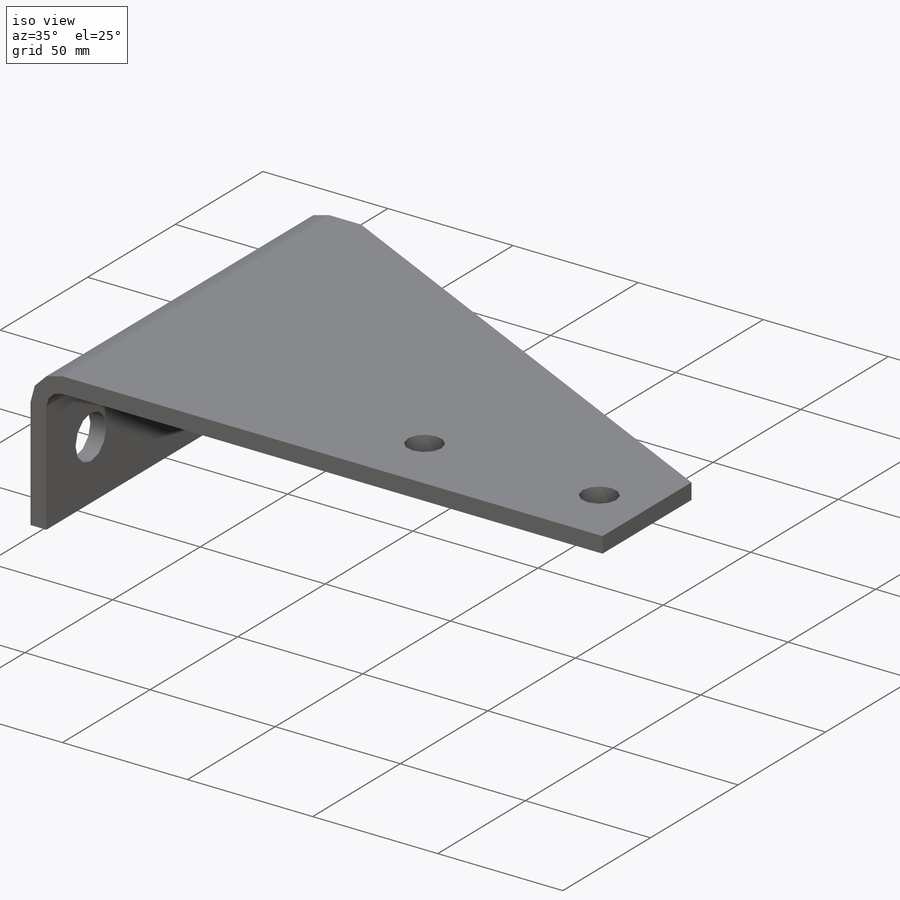
[diagram: iso view]
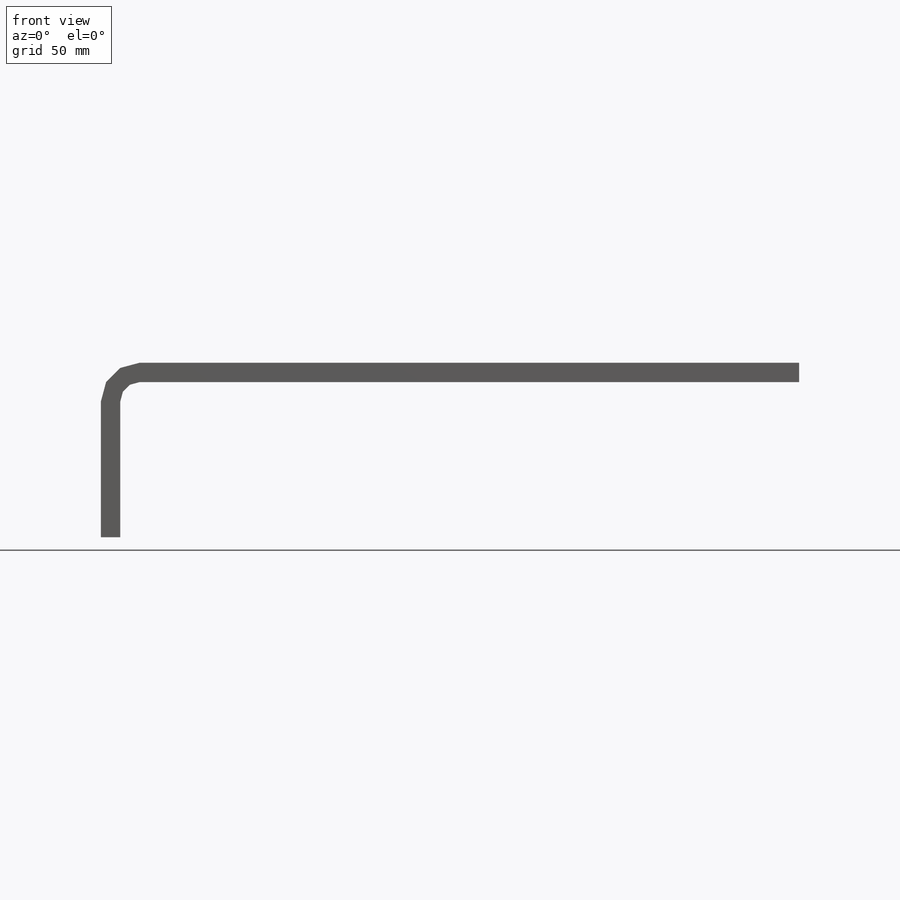
[diagram: front view]
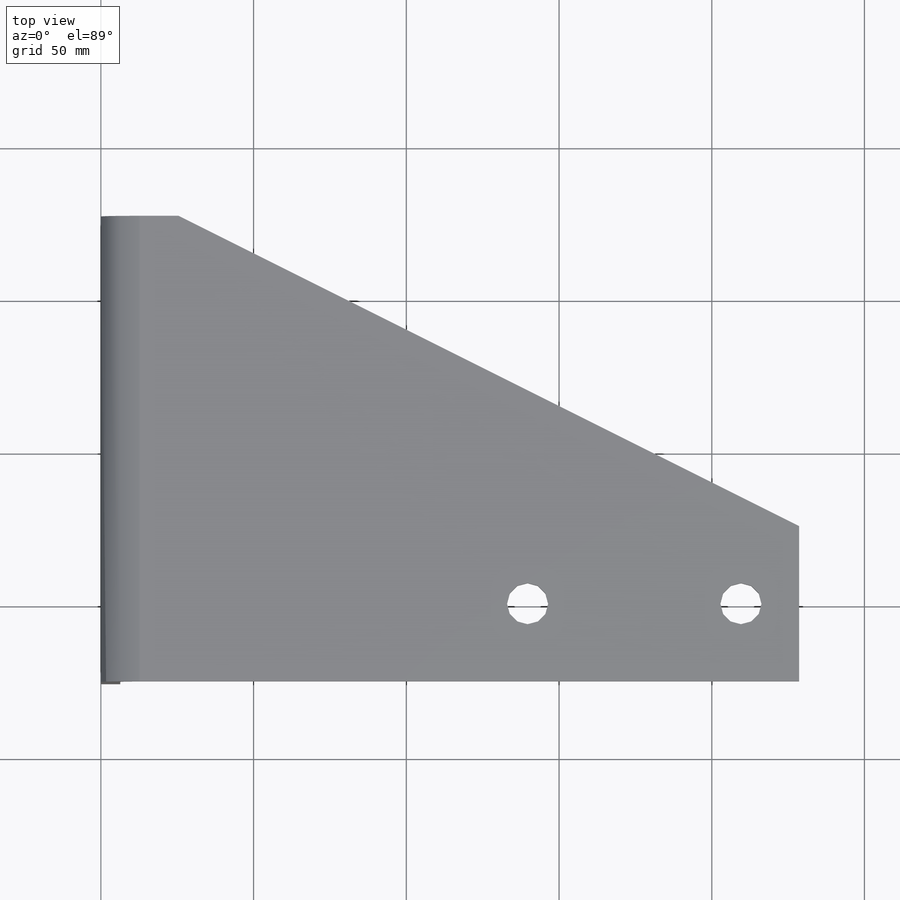
[diagram: top view]
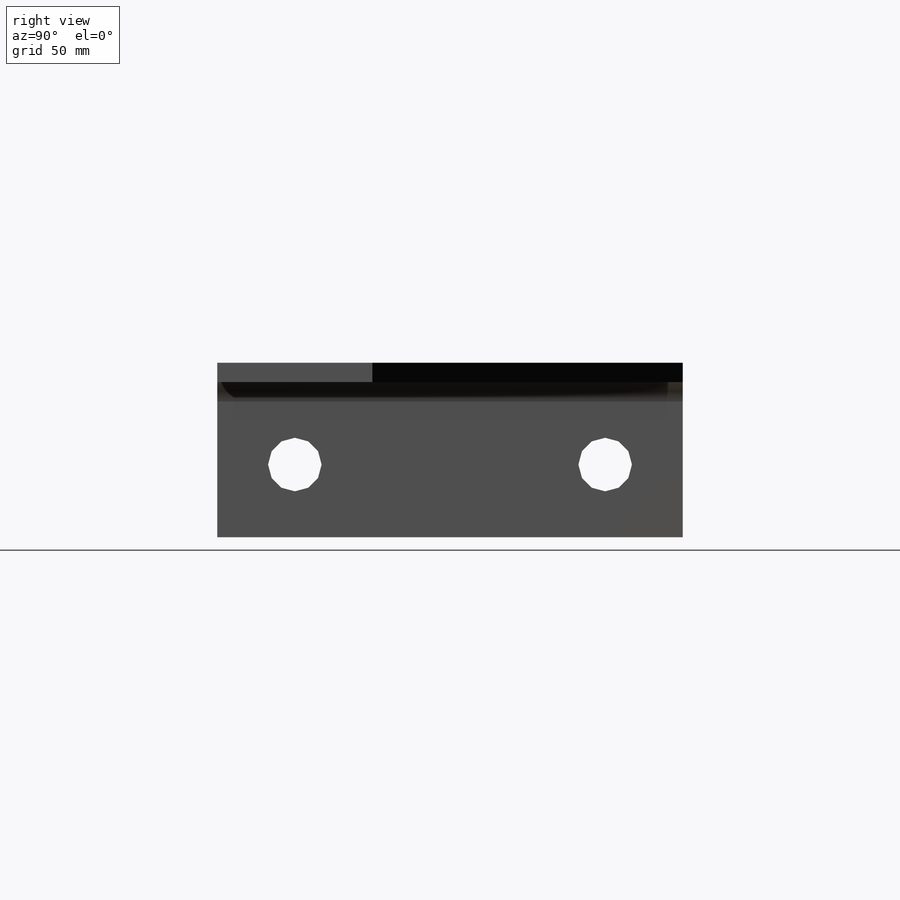
[diagram: right view]
SOLIDWORKS PART (.sldprt)
format: sldprt  version: not decoded by parser v0  size: 336,384 bytes
history: native  units: mm
features: sketch x3, cut_extrude x2, plane x1, extrude x1 (+9 scaffold rows collapsed)
feature tree (16):
  scaffold x9  (default folders/planes/origin — collapsed)
  plane  "Side"
  sketch  "Sketch1"  dims[c1.D3=9.525mm c1.D1=228.6mm c1.D2=93.6625mm c1.D4=6.35mm c1.D5=93.6625mm c2.D2=57.15mm]
  extrude  "Extrude1"  Depth=254mm
  sketch  "Sketch2"  dims[c1.D5=13.462mm c1.D6=13.462mm c1.D1=25.4mm c1.D2=25.4mm c1.D3=25.4mm c1.D4=139.7mm c2.D5=69.85mm]
  cut_extrude  "Cut-Chamfer"  Depth=508mm
  sketch  "Sketch3"  dims[c1.D2=~17.831892mm c1.D3=13.462mm c1.D1=25.4mm c2.D2=101.6mm c2.D4=36.5125mm c2.D5=93.6625mm c2.D1=101.6mm]
  cut_extrude  "Cut-Holes"  [1 undecoded]
decode coverage: 5 of 6 modeling features carry decoded parameters
note: ~ marks probable driven/reference dimensions
note: 1 parameter value undecoded
note: suppression state not decoded; provenance and decode notes live in map.json
